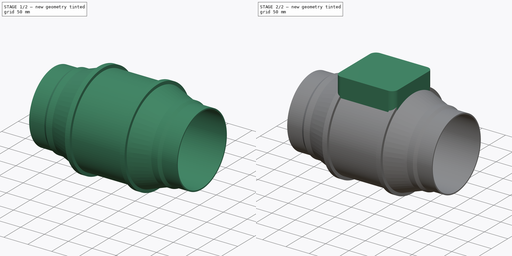
[diagram: build sequence overview — one tinted view per stage of 2, left to right]
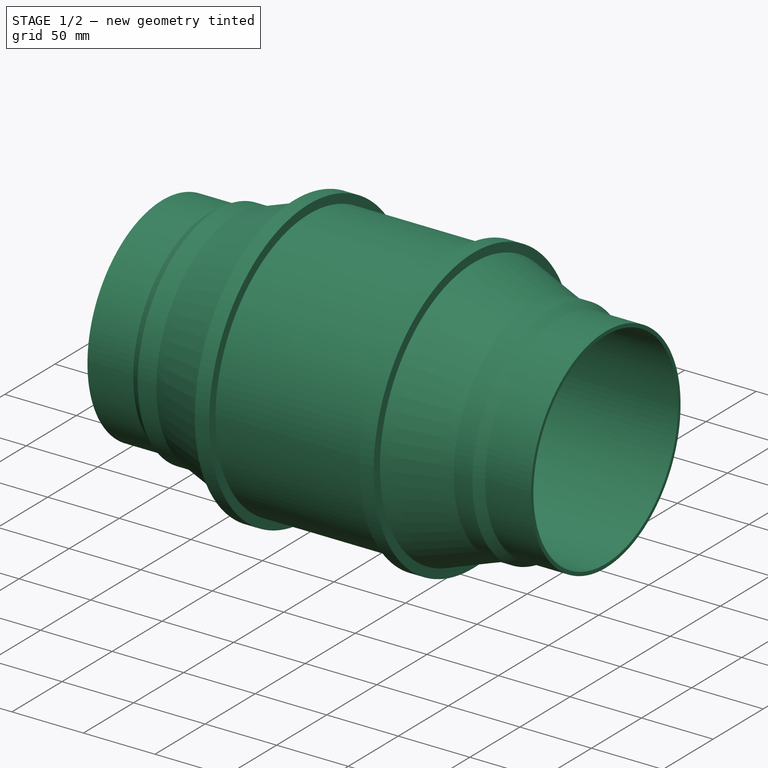
[diagram: stage 1 of 2 — iso view after this stage's code; geometry added in this stage tinted green]
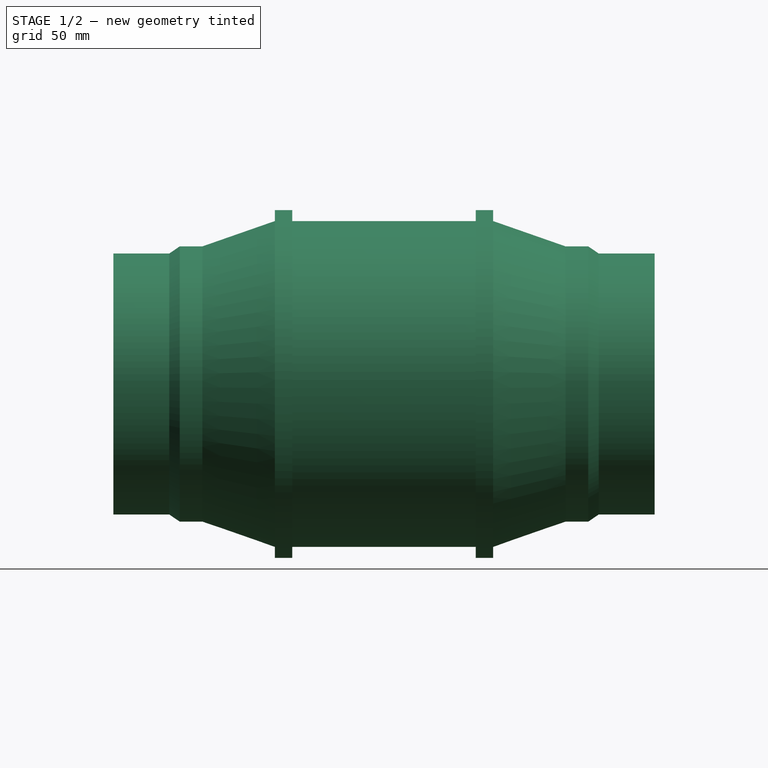
[diagram: stage 1 of 2 — front view after this stage's code; geometry added in this stage tinted green]
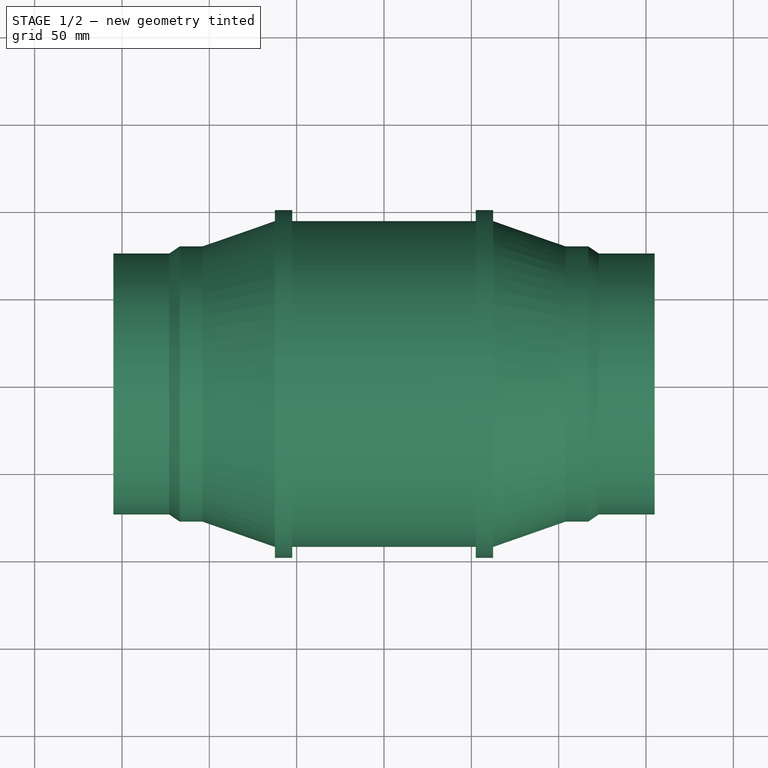
[diagram: stage 1 of 2 — top view after this stage's code; geometry added in this stage tinted green]
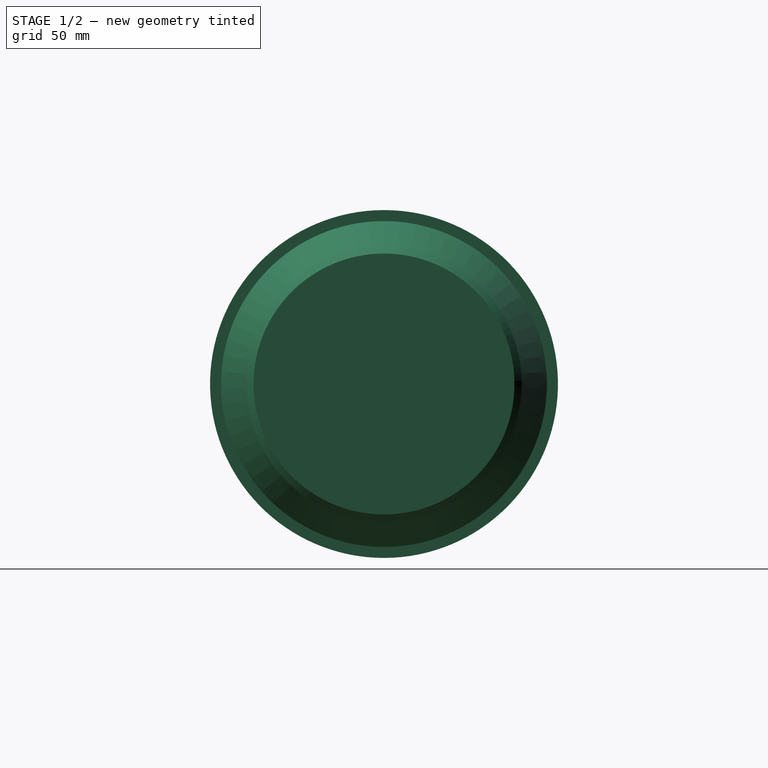
[diagram: stage 1 of 2 — right view after this stage's code; geometry added in this stage tinted green]
FCSTD DOCUMENT  (FreeCAD 1.1R40971 (Git))
Label: exhaust-fan
License: All rights reserved
LicenseURL: http://en.wikipedia.org/wiki/All_rights_reserved
objects: Sketcher::SketchObject×3, PartDesign::Revolution×1, PartDesign::Pad×1, App::Point×1, Part::Feature×1, PartDesign::Body×1
note: 14 computed .brp shape members not serialized (recipe doc carries the construction recipe); baked Part::Feature solids carry a one-line shape summary decoded from their .brp

FEATURE [Sketcher::SketchObject] Sketch
  ArcFitTolerance = 0
  AttachmentSupport = -> [XZ_Plane]
  ExternalTypes = [0]
  FullyConstrained = true
  MakeInternals = false
  MapMode = 5
  Placement = pos=(0,0,0) rot=(1,0,0;1.5708rad)
  expr: Constraints[35] = 3.67 in + 0.25 in
  sketch-geometry (22):
    g0: LineSegment StartX=-103.94 StartY=78.7817 StartZ=0 EndX=-62.5 EndY=93.2648 EndZ=0
    g1: LineSegment StartX=-62.5 StartY=93.2648 StartZ=0 EndX=-62.5 EndY=99.568 EndZ=0
    g2: LineSegment StartX=-62.5 StartY=99.568 StartZ=0 EndX=-52.5 EndY=99.568 EndZ=0
    g3: LineSegment StartX=-52.5 StartY=99.568 StartZ=0 EndX=-52.5 EndY=93.2648 EndZ=0
    g4: LineSegment StartX=-52.5 StartY=93.2648 StartZ=0 EndX=52.5 EndY=93.2648 EndZ=0
    g5: LineSegment StartX=52.5 StartY=93.2648 StartZ=0 EndX=52.5 EndY=99.568 EndZ=0
    g6: LineSegment StartX=52.5 StartY=99.568 StartZ=0 EndX=62.5 EndY=99.568 EndZ=0
    g7: LineSegment StartX=62.5 StartY=99.568 StartZ=0 EndX=62.5 EndY=93.2648 EndZ=0
    g8: LineSegment StartX=62.5 StartY=93.2648 StartZ=0 EndX=103.94 EndY=78.7817 EndZ=0
    g9: LineSegment StartX=-103.94 StartY=78.7817 StartZ=0 EndX=-116.94 EndY=78.7817 EndZ=0
    g10: LineSegment StartX=-116.94 StartY=78.7817 StartZ=0 EndX=-122.94 EndY=74.676 EndZ=0
    g11: LineSegment StartX=-122.94 StartY=74.676 StartZ=0 EndX=-154.94 EndY=74.676 EndZ=0
    g12: LineSegment StartX=103.94 StartY=78.7817 StartZ=0 EndX=116.94 EndY=78.7817 EndZ=0
    g13: LineSegment StartX=116.94 StartY=78.7817 StartZ=0 EndX=122.94 EndY=74.676 EndZ=0
    g14: LineSegment StartX=122.94 StartY=74.676 StartZ=0 EndX=154.94 EndY=74.676 EndZ=0
    g15: LineSegment StartX=-154.94 StartY=74.676 StartZ=0 EndX=-154.94 EndY=72.176 EndZ=0
    g16: LineSegment StartX=-154.94 StartY=72.176 StartZ=0 EndX=-54.94 EndY=72.176 EndZ=0
    g17: LineSegment StartX=-54.94 StartY=72.176 StartZ=0 EndX=-54.94 EndY=0 EndZ=0
    g18: LineSegment StartX=-54.94 StartY=0 StartZ=0 EndX=54.94 EndY=0 EndZ=0
    g19: LineSegment StartX=54.94 StartY=0 StartZ=0 EndX=54.94 EndY=72.176 EndZ=0
    g20: LineSegment StartX=54.94 StartY=72.176 StartZ=0 EndX=154.94 EndY=72.176 EndZ=0
    g21: LineSegment StartX=154.94 StartY=72.176 StartZ=0 EndX=154.94 EndY=74.676 EndZ=0
  constraints (62):
    c: Coincident(g0,g1)
    c: Coincident(g1,g2)
    c: Coincident(g2,g3)
    c: Coincident(g3,g4)
    c: Coincident(g4,g5)
    c: Coincident(g5,g6)
    c: Coincident(g6,g7)
    c: Coincident(g7,g8)
    c: Horizontal(g2)
    c: Horizontal(g6)
    c: Vertical(g3)
    c: Vertical(g1)
    c: Vertical(g5)
    c: Vertical(g7)
    c: PointOnObject(g0,g4)
    c: PointOnObject(g7,g4)
    c: Symmetric(g3,g4,g-2)
    c: Equal(g6,g2)
    c: DistanceY(g-1,g4) = 93.2648
    c: PointOnObject(g5,g2)
    c: DistanceX(g2,g2) = 10
    c: DistanceX(g4,g4) = 105
    c: Coincident(g0,g9)
    c: Coincident(g9,g10)
    c: Coincident(g10,g11)
    c: Coincident(g8,g12)
    c: Horizontal(g12)
    c: Coincident(g12,g13)
    c: Coincident(g13,g14)
    c: Horizontal(g14)
    c: Horizontal(g11)
    c: DistanceX(g11,g11) = 32
    c: Equal(g14,g11)
    c: DistanceX(g9,g9) = 13
    c: DistanceX(g11,g9) = 38
    c: DistanceY(g-1,g2) = 99.568
    c: Symmetric(g0,g8,g-2)
    c: Symmetric(g9,g12,g-2)
    c: Coincident(g11,g15)
    c: Coincident(g15,g16)
    c: Horizontal(g16)
    c: Coincident(g16,g17)
    c: DistanceY(g-1,g11) = 74.676
    c: Vertical(g17)
    c: DistanceX(g16,g16) = 100
    c: Vertical(g15)
    c: DistanceX(g11,g14) = 309.88
    c: Coincident(g17,g18)
    c: PointOnObject(g18,g-1)
    c: Horizontal(g18)
    c: Coincident(g18,g19)
    c: Vertical(g19)
    c: Coincident(g19,g20)
    c: Horizontal(g20)
    c: Coincident(g20,g21)
    c: Coincident(g21,g14)
    c: Equal(g21,g15)
    c: Vertical(g21)
    c: DistanceY(g21,g21) = 2.5
    c: Equal(g20,g16)
    c: Symmetric(g15,g20,g-2)
    c: DistanceY(g-1,g9) = 78.7817
FEATURE [PartDesign::Revolution] Revolution
  Angle = 360
  Angle2 = 60
  Axis = (1,0,0)
  Base = (0,0,0)
  Placement = pos=(0,0,0) rot=(1,0,0;1.5708rad)
  Profile = -> Sketch
  ReferenceAxis = -> Sketch [H_Axis]
  Suppressed = false
  Type = 0
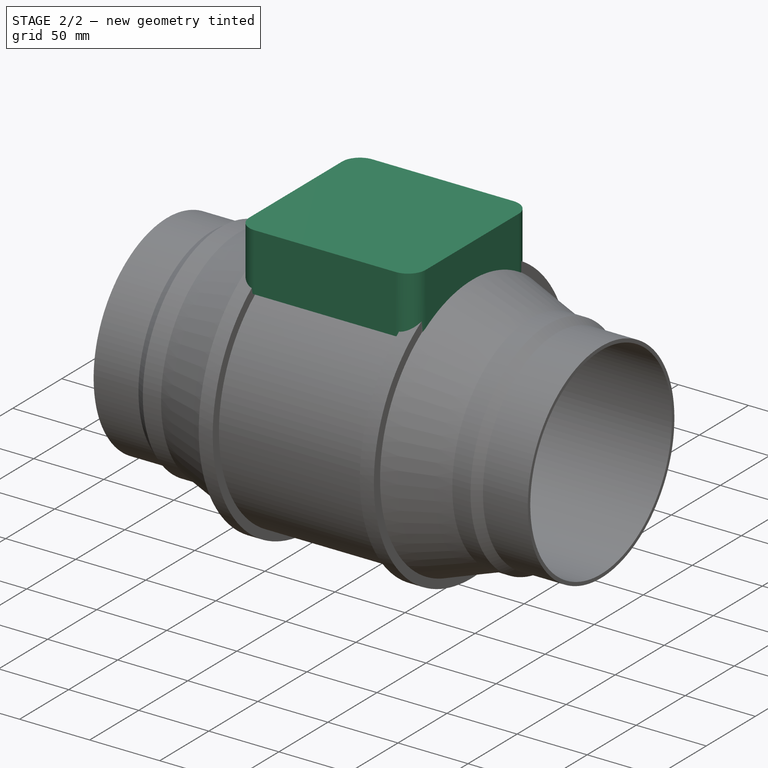
[diagram: stage 2 of 2 — iso view after this stage's code; geometry added in this stage tinted green]
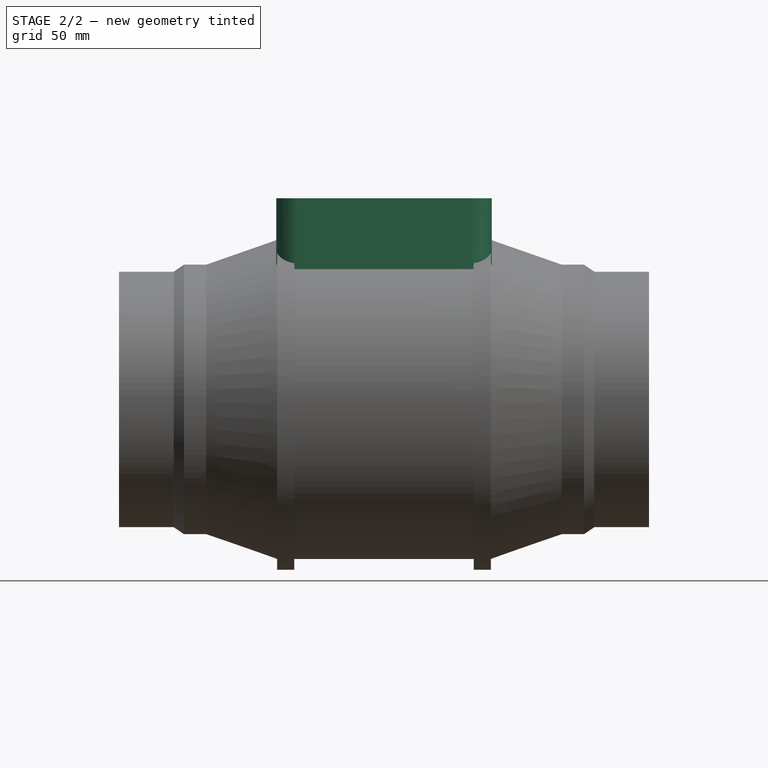
[diagram: stage 2 of 2 — front view after this stage's code; geometry added in this stage tinted green]
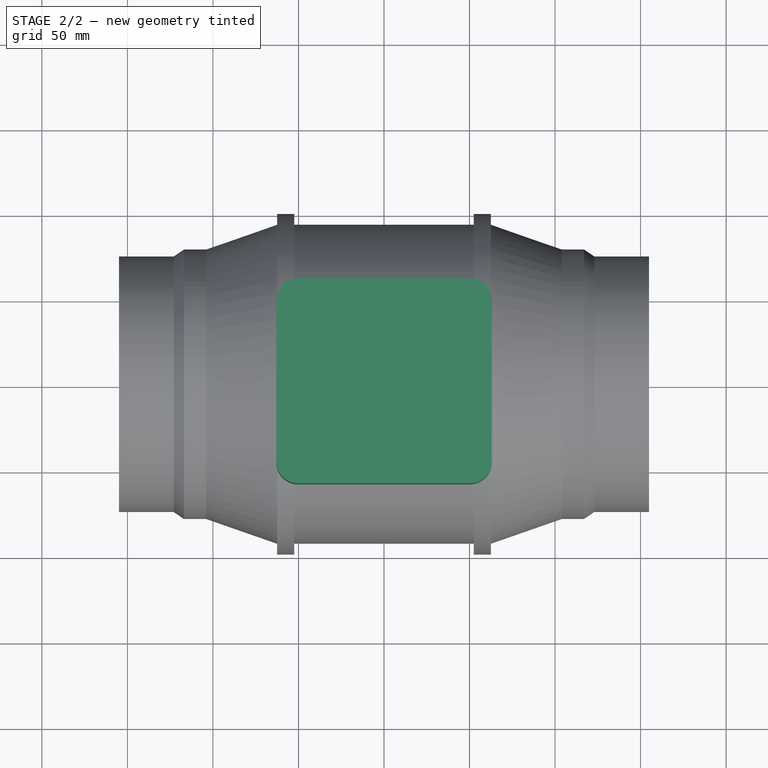
[diagram: stage 2 of 2 — top view after this stage's code; geometry added in this stage tinted green]
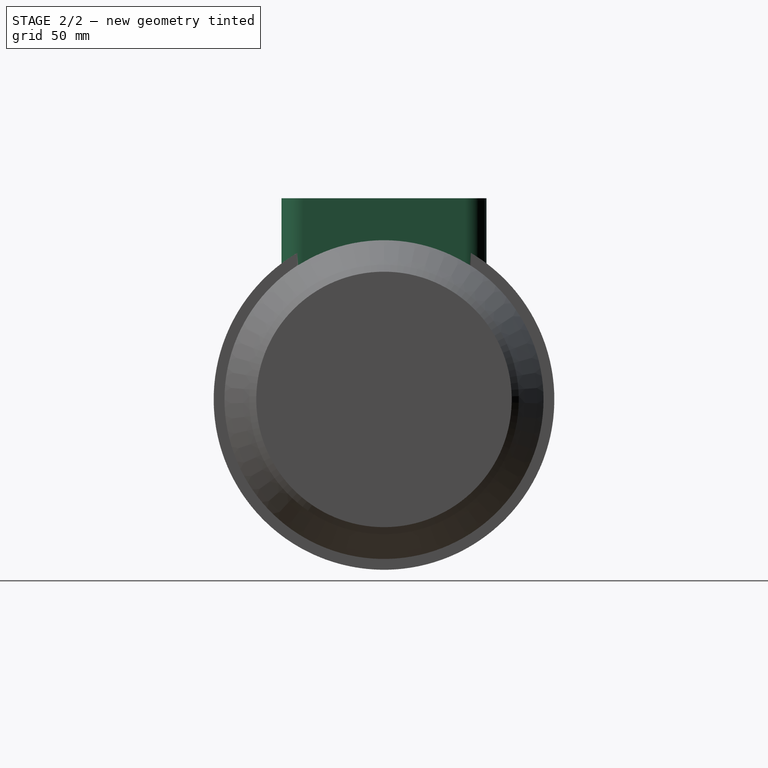
[diagram: stage 2 of 2 — right view after this stage's code; geometry added in this stage tinted green]
FEATURE [Sketcher::SketchObject] Sketch001
  ArcFitTolerance = 0
  ExternalTypes = [0]
  FullyConstrained = true
  MakeInternals = false
  MapMode = 5
  Placement = pos=(0,0,76.2) rot=(0,0,1;0rad)
  sketch-geometry (12):
    g0: LineSegment StartX=-50.3 StartY=-59.944 StartZ=0 EndX=50.3 EndY=-59.944 EndZ=0
    g1: LineSegment StartX=63 StartY=-47.244 StartZ=0 EndX=63 EndY=47.244 EndZ=0
    g2: LineSegment StartX=50.3 StartY=59.944 StartZ=0 EndX=-50.3 EndY=59.944 EndZ=0
    g3: LineSegment StartX=-63 StartY=47.244 StartZ=0 EndX=-63 EndY=-47.244 EndZ=0
    g4: ArcOfCircle CenterX=-50.3 CenterY=47.244 CenterZ=0 NormalX=0 NormalY=0 NormalZ=1 AngleXU=0 Radius=12.7 StartAngle=1.5708 EndAngle=3.14159
    g5: GeomPoint [constr] X=-63 Y=59.944 Z=0
    g6: ArcOfCircle CenterX=50.3 CenterY=47.244 CenterZ=0 NormalX=0 NormalY=0 NormalZ=1 AngleXU=0 Radius=12.7 StartAngle=-6.39e-14 EndAngle=1.5708
    g7: GeomPoint [constr] X=63 Y=59.944 Z=0
    g8: ArcOfCircle CenterX=-50.3 CenterY=-47.244 CenterZ=0 NormalX=0 NormalY=0 NormalZ=1 AngleXU=0 Radius=12.7 StartAngle=3.14159 EndAngle=4.71239
    g9: GeomPoint [constr] X=-63 Y=-59.944 Z=0
    g10: ArcOfCircle CenterX=50.3 CenterY=-47.244 CenterZ=0 NormalX=0 NormalY=0 NormalZ=1 AngleXU=0 Radius=12.7 StartAngle=4.71239 EndAngle=6.28319
    g11: GeomPoint [constr] X=63 Y=-59.944 Z=0
  constraints (26):
    c: Horizontal(g0)
    c: Vertical(g1)
    c: Vertical(g3)
    c: DistanceX(g5,g7) = 126
    c: DistanceY(g11,g7) = 119.888
    c: Symmetric(g5,g7,g-2)
    c: PointOnObject(g5,g2)
    c: PointOnObject(g5,g3)
    c: Tangent(g2,g4) = -1.5708
    c: Tangent(g3,g4) = -1.5708
    c: PointOnObject(g7,g2)
    c: PointOnObject(g7,g1)
    c: Tangent(g2,g6) = -1.5708
    c: Tangent(g1,g6) = -1.5708
    c: PointOnObject(g9,g0)
    c: PointOnObject(g9,g3)
    c: Tangent(g0,g8) = -1.5708
    c: Tangent(g3,g8) = -1.5708
    c: PointOnObject(g11,g0)
    c: PointOnObject(g11,g1)
    c: Tangent(g0,g10) = -1.5708
    c: Tangent(g1,g10) = -1.5708
    c: Equal(g6,g4)
    c: Equal(g4,g8)
    c: Radius(g6) = 12.7
    c: Symmetric(g2,g0,g-1)
FEATURE [PartDesign::Pad] Pad
  BaseFeature = -> Revolution
  Direction = (0,0,1)
  Length = 41.402
  Length2 = 10
  Placement = pos=(0,0,0) rot=(1,0,0;1.5708rad)
  Profile = -> Sketch001
  ReferenceAxis = -> Sketch001 [N_Axis]
  Suppressed = false
  Type = 0
FEATURE [App::Point] Origin001  label="Origin"
  Role = Origin
FEATURE [Part::Feature] Body_cs
  shape: bbox 309.9 x 0.0004313 x 217.2 mm, 0 faces, 0 solids (baked)
FEATURE [Sketcher::SketchObject] Sketch002
  ArcFitTolerance = 1e-06
  AttachmentSupport = -> [XZ_Plane]
  ExternalTypes = [0]
  FullyConstrained = false
  MakeInternals = false
  MapMode = 5
  Placement = pos=(0,0,0) rot=(1,0,0;1.5708rad)
  sketch-geometry (1):
    g0: LineSegment StartX=-63 StartY=117.602 StartZ=0 EndX=63 EndY=117.602 EndZ=0
  constraints (2):
    c: Horizontal(g0)
    c: DistanceY(g-1,g0) = 117.602
FEATURE [PartDesign::Body] Body
  AllowCompound = false
  Group = -> [Sketch,Revolution,Sketch001,Pad,Sketch002]
  Origin = -> Origin
  Tip = -> Pad
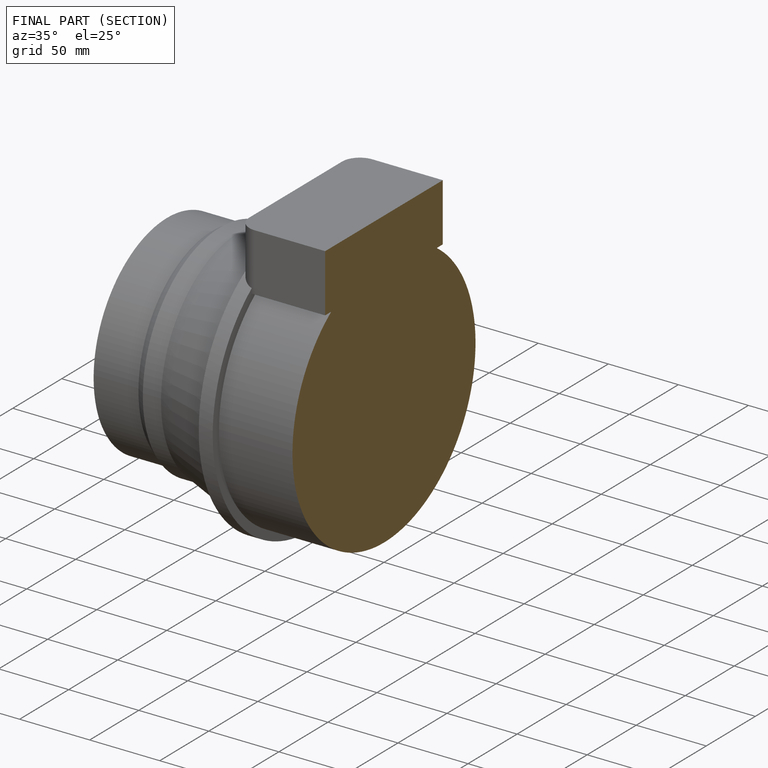
[diagram: finished part — half-section view (interior)]
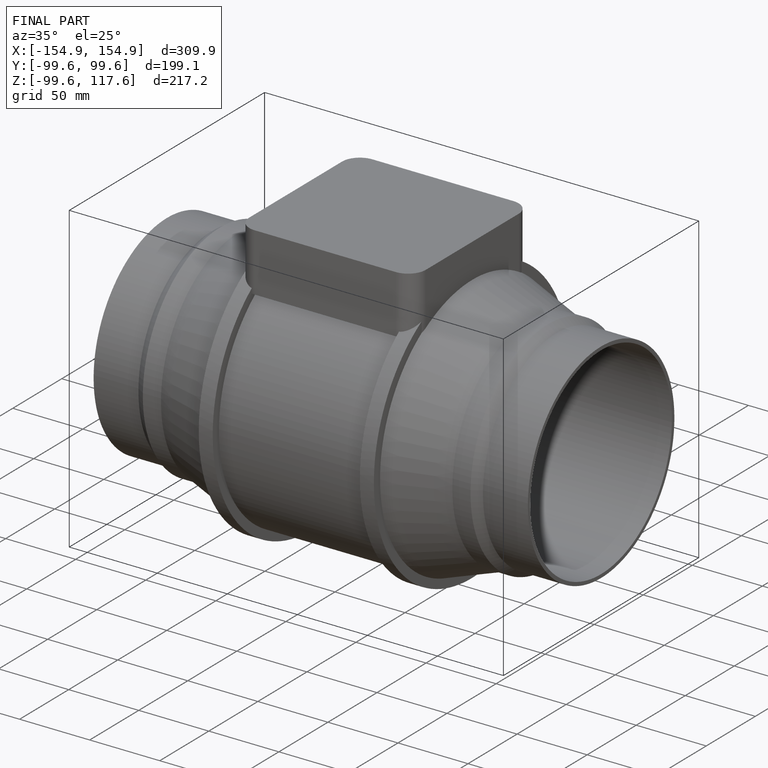
[diagram: finished part — iso view with bounding-box wireframe]
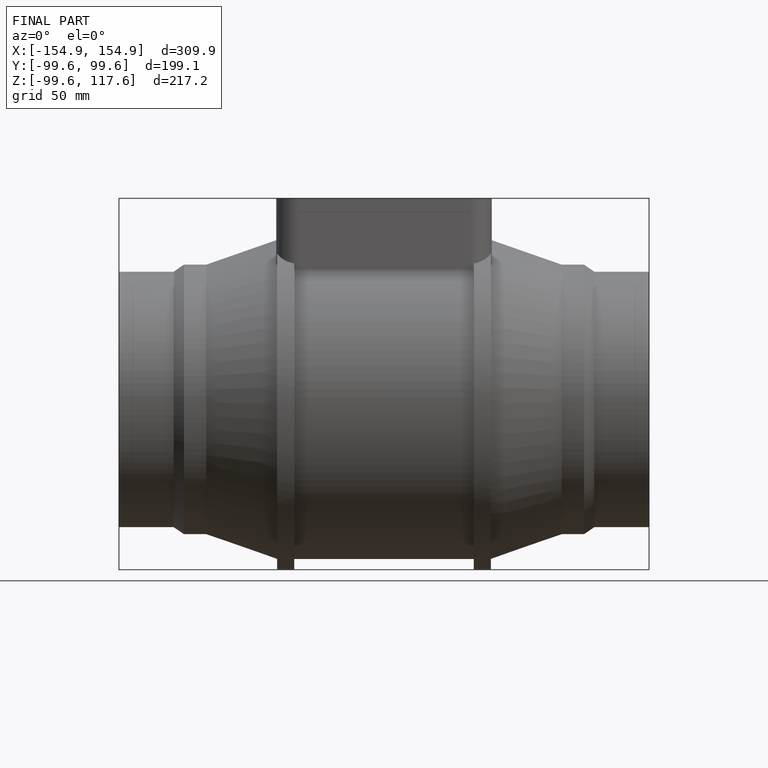
[diagram: finished part — front view with bounding-box wireframe]
